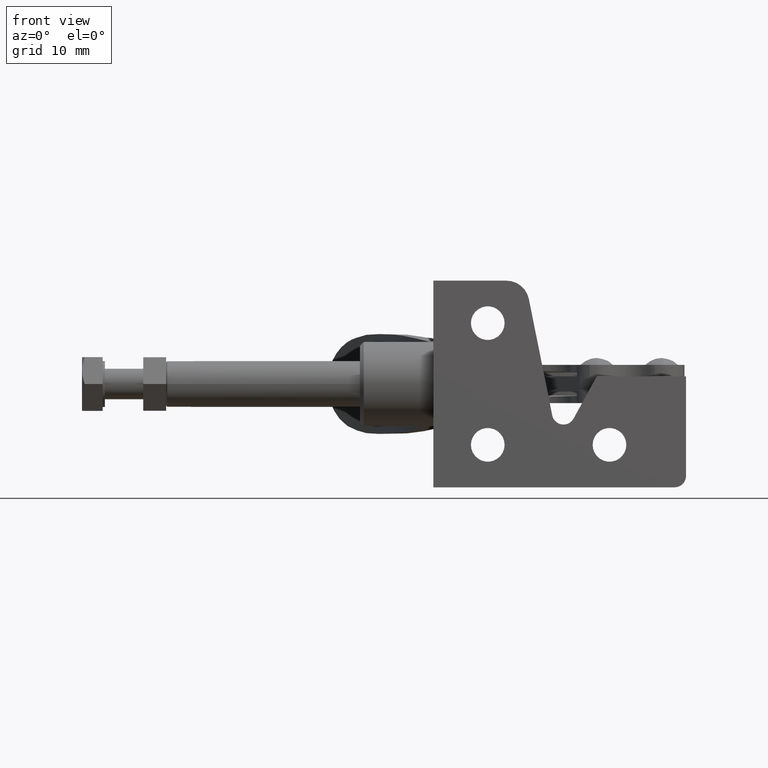
[diagram: clean part render]
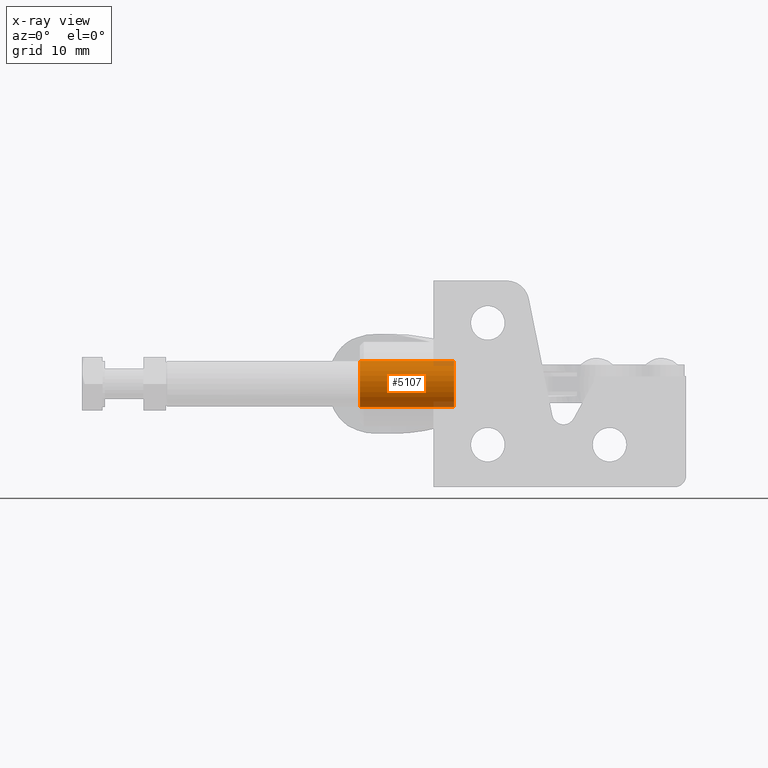
[diagram: x-ray — body ghosted, one internal face saturated and labeled with its STEP entity id]
A machine part, front view, then the same camera in x-ray: the body is ghosted and one INTERNAL B-rep face — a face not visible from any outside direction — is saturated and labeled: STEP entity #5107.
In plain terms, the highlighted cylindrical surface (edge-blend (fillet) strip) has radius 3 mm, axis along (-1, -0, -0).
Its self-contained STEP definition (entity closure, byte-faithful):
#421 = LINE ( 'NONE', #3827, #4244 ) ;
#485 = DIRECTION ( 'NONE',  ( -1.000000000000000000, -0.0000000000000000000, -0.0000000000000000000 ) ) ;
#498 = EDGE_LOOP ( 'NONE', ( #2647, #2019, #4150, #3090 ) ) ;
#535 = AXIS2_PLACEMENT_3D ( 'NONE', #1432, #4805, #1914 ) ;
#640 = CIRCLE ( 'NONE', #535, 2.999999999999999100 ) ;
#788 = CYLINDRICAL_SURFACE ( 'NONE', #5801, 2.999999999999999100 ) ;
#804 = DIRECTION ( 'NONE',  ( -1.000000000000000000, -0.0000000000000000000, -0.0000000000000000000 ) ) ;
#822 = VERTEX_POINT ( 'NONE', #4893 ) ;
#1089 = CARTESIAN_POINT ( 'NONE',  ( -42.60000000000003700, 12.69999999999994400, 16.49999999999995700 ) ) ;
#1107 = CIRCLE ( 'NONE', #5885, 2.999999999999999100 ) ;
#1367 = CARTESIAN_POINT ( 'NONE',  ( -30.30000000000003300, 12.69999999999994400, 10.49999999999996100 ) ) ;
#1432 = CARTESIAN_POINT ( 'NONE',  ( -42.60000000000003700, 12.69999999999994400, 13.49999999999995900 ) ) ;
#1725 = VERTEX_POINT ( 'NONE', #1367 ) ;
#1914 = DIRECTION ( 'NONE',  ( 0.0000000000000000000, 0.0000000000000000000, -1.000000000000000000 ) ) ;
#2019 = ORIENTED_EDGE ( 'NONE', *, *, #3986, .T. ) ;
#2057 = VECTOR ( 'NONE', #5280, 1000.000000000000000 ) ;
#2647 = ORIENTED_EDGE ( 'NONE', *, *, #3786, .F. ) ;
#2789 = CARTESIAN_POINT ( 'NONE',  ( -19.97624099467651600, 12.69999999999994400, 13.49999999999995900 ) ) ;
#2814 = DIRECTION ( 'NONE',  ( -1.000000000000000000, -0.0000000000000000000, -0.0000000000000000000 ) ) ;
#3090 = ORIENTED_EDGE ( 'NONE', *, *, #6012, .F. ) ;
#3667 = CARTESIAN_POINT ( 'NONE',  ( -30.30000000000003300, 12.69999999999994400, 13.49999999999995900 ) ) ;
#3786 = EDGE_CURVE ( 'NONE', #1725, #5678, #1107, .T. ) ;
#3827 = CARTESIAN_POINT ( 'NONE',  ( -19.97624099467651600, 12.69999999999994400, 10.49999999999996100 ) ) ;
#3854 = CARTESIAN_POINT ( 'NONE',  ( -30.30000000000003300, 12.69999999999994400, 16.49999999999995700 ) ) ;
#3986 = EDGE_CURVE ( 'NONE', #1725, #822, #421, .T. ) ;
#4142 = DIRECTION ( 'NONE',  ( 0.0000000000000000000, 0.0000000000000000000, 1.000000000000000000 ) ) ;
#4150 = ORIENTED_EDGE ( 'NONE', *, *, #5170, .F. ) ;
#4244 = VECTOR ( 'NONE', #485, 1000.000000000000000 ) ;
#4805 = DIRECTION ( 'NONE',  ( 1.000000000000000000, 0.0000000000000000000, 0.0000000000000000000 ) ) ;
#4893 = CARTESIAN_POINT ( 'NONE',  ( -42.60000000000003700, 12.69999999999994400, 10.49999999999996100 ) ) ;
#5107 = ADVANCED_FACE ( 'NONE', ( #5904 ), #788, .F. ) ;
#5170 = EDGE_CURVE ( 'NONE', #6095, #822, #640, .T. ) ;
#5280 = DIRECTION ( 'NONE',  ( -1.000000000000000000, -0.0000000000000000000, -0.0000000000000000000 ) ) ;
#5668 = DIRECTION ( 'NONE',  ( 0.0000000000000000000, 0.0000000000000000000, 1.000000000000000000 ) ) ;
#5678 = VERTEX_POINT ( 'NONE', #3854 ) ;
#5767 = CARTESIAN_POINT ( 'NONE',  ( -19.97624099467651600, 12.69999999999994400, 16.49999999999995700 ) ) ;
#5801 = AXIS2_PLACEMENT_3D ( 'NONE', #2789, #2814, #5668 ) ;
#5885 = AXIS2_PLACEMENT_3D ( 'NONE', #3667, #804, #4142 ) ;
#5892 = LINE ( 'NONE', #5767, #2057 ) ;
#5904 = FACE_OUTER_BOUND ( 'NONE', #498, .T. ) ;
#6012 = EDGE_CURVE ( 'NONE', #5678, #6095, #5892, .T. ) ;
#6095 = VERTEX_POINT ( 'NONE', #1089 ) ;